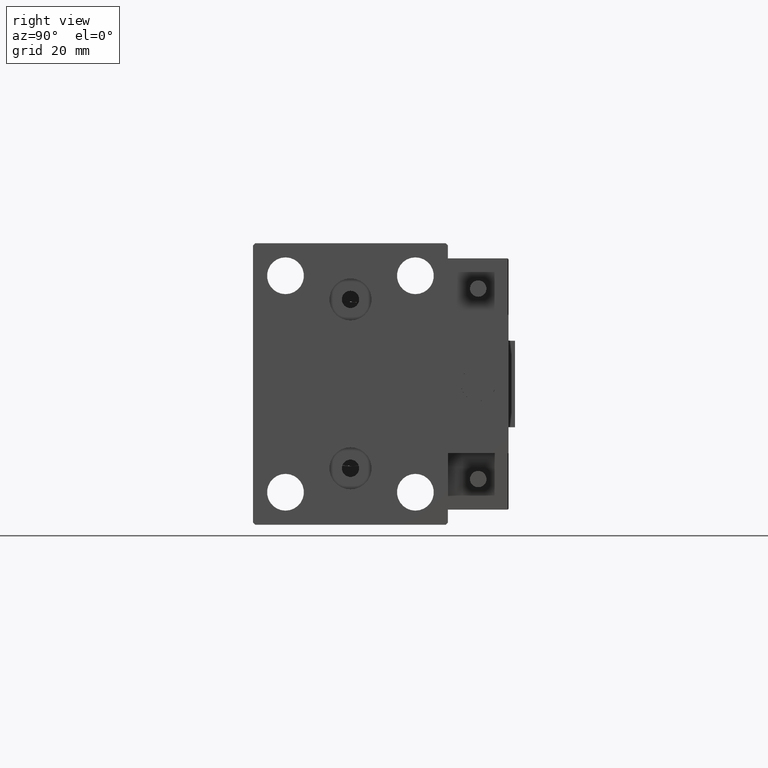
[diagram: clean part render]
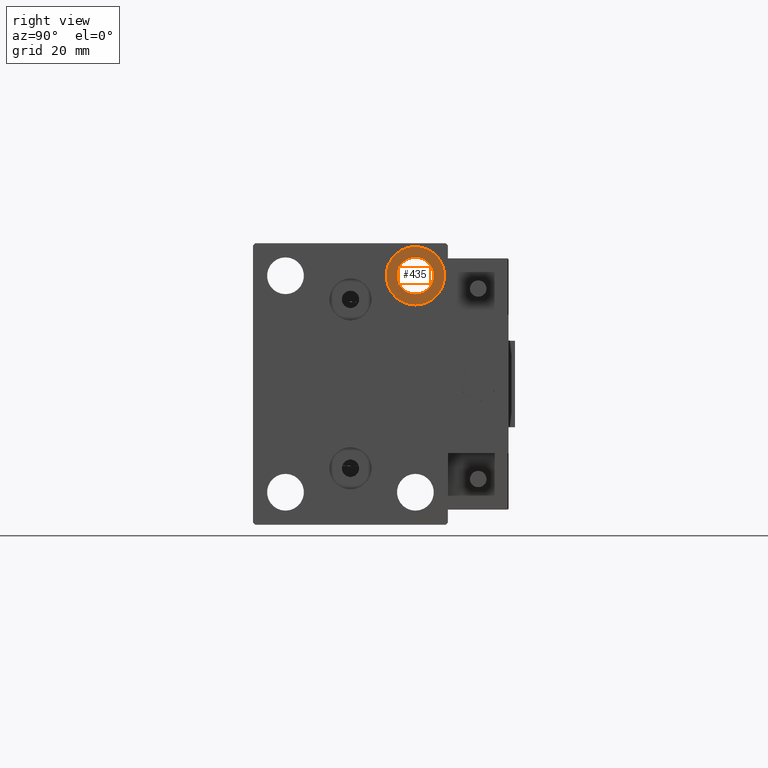
[diagram: same view with one face highlighted and labeled with its STEP entity id]
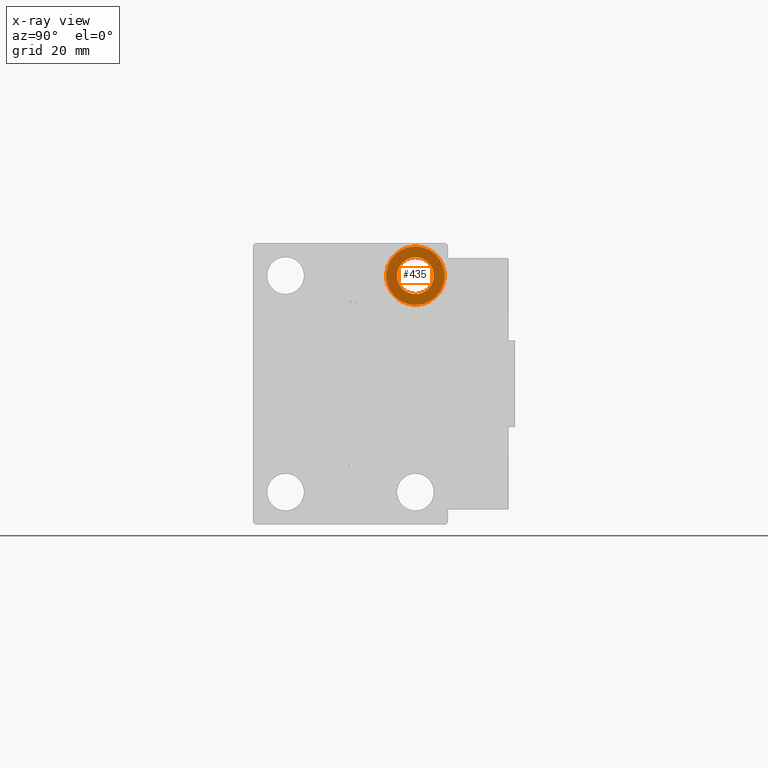
[diagram: x-ray of the same camera — body ghosted, the highlighted face saturated]
A machine part, right view. The second image highlights one B-rep face of the part: STEP entity #435.
The next image is the same camera in x-ray: the body ghosted, the highlighted face saturated — about 0% of this face is hidden behind the body in this view.
In plain terms, the highlighted planar face has unit normal (1, 0, 0).
Its self-contained STEP definition (entity closure, byte-faithful):
#328 = AXIS2_PLACEMENT_3D ( 'NONE', #40379, #33016, #14024 ) ;
#381 = DIRECTION ( 'NONE',  ( -1.000000000000000000, -0.000000000000000000, -0.000000000000000000 ) ) ;
#404 = AXIS2_PLACEMENT_3D ( 'NONE', #48763, #33769, #10721 ) ;
#435 = ADVANCED_FACE ( 'NONE', ( #22611, #14268 ), #45205, .T. ) ;
#714 = ORIENTED_EDGE ( 'NONE', *, *, #20349, .T. ) ;
#1921 = AXIS2_PLACEMENT_3D ( 'NONE', #24987, #48564, #25478 ) ;
#8231 = CARTESIAN_POINT ( 'NONE',  ( 61.00000000000000711, 15.00000000000000355, 20.75000000000000355 ) ) ;
#8266 = VERTEX_POINT ( 'NONE', #24168 ) ;
#9231 = DIRECTION ( 'NONE',  ( -1.000000000000000000, -0.000000000000000000, -0.000000000000000000 ) ) ;
#10054 = CIRCLE ( 'NONE', #328, 4.249999999999996447 ) ;
#10721 = DIRECTION ( 'NONE',  ( 0.000000000000000000, 0.000000000000000000, 1.000000000000000000 ) ) ;
#10949 = ORIENTED_EDGE ( 'NONE', *, *, #42204, .T. ) ;
#14024 = DIRECTION ( 'NONE',  ( 0.000000000000000000, 0.000000000000000000, -1.000000000000000000 ) ) ;
#14268 = FACE_BOUND ( 'NONE', #36955, .T. ) ;
#19148 = CARTESIAN_POINT ( 'NONE',  ( 61.00000000000000711, 15.00000000000000355, 25.00000000000000000 ) ) ;
#20119 = EDGE_CURVE ( 'NONE', #43383, #30263, #24628, .T. ) ;
#20349 = EDGE_CURVE ( 'NONE', #26672, #8266, #10054, .T. ) ;
#20889 = CIRCLE ( 'NONE', #46798, 6.749999999999999112 ) ;
#21656 = CARTESIAN_POINT ( 'NONE',  ( 61.00000000000000711, 15.00000000000000355, 18.25000000000000355 ) ) ;
#22611 = FACE_OUTER_BOUND ( 'NONE', #36376, .T. ) ;
#24168 = CARTESIAN_POINT ( 'NONE',  ( 61.00000000000000711, 15.00000000000000355, 29.25000000000000000 ) ) ;
#24628 = CIRCLE ( 'NONE', #1921, 6.749999999999999112 ) ;
#24678 = DIRECTION ( 'NONE',  ( 0.000000000000000000, 0.000000000000000000, 1.000000000000000000 ) ) ;
#24987 = CARTESIAN_POINT ( 'NONE',  ( 61.00000000000000711, 15.00000000000000355, 25.00000000000000000 ) ) ;
#25478 = DIRECTION ( 'NONE',  ( 0.000000000000000000, 0.000000000000000000, 1.000000000000000000 ) ) ;
#26672 = VERTEX_POINT ( 'NONE', #8231 ) ;
#28240 = CARTESIAN_POINT ( 'NONE',  ( 61.00000000000000711, 15.00000000000000355, 25.00000000000000000 ) ) ;
#28351 = AXIS2_PLACEMENT_3D ( 'NONE', #19148, #381, #31057 ) ;
#30263 = VERTEX_POINT ( 'NONE', #43613 ) ;
#31057 = DIRECTION ( 'NONE',  ( 0.000000000000000000, 0.000000000000000000, -1.000000000000000000 ) ) ;
#33016 = DIRECTION ( 'NONE',  ( -1.000000000000000000, -0.000000000000000000, -0.000000000000000000 ) ) ;
#33463 = EDGE_CURVE ( 'NONE', #30263, #43383, #20889, .T. ) ;
#33769 = DIRECTION ( 'NONE',  ( 1.000000000000000000, 0.000000000000000000, -0.000000000000000000 ) ) ;
#36376 = EDGE_LOOP ( 'NONE', ( #41265, #45070 ) ) ;
#36955 = EDGE_LOOP ( 'NONE', ( #10949, #714 ) ) ;
#40379 = CARTESIAN_POINT ( 'NONE',  ( 61.00000000000000711, 15.00000000000000355, 25.00000000000000000 ) ) ;
#41265 = ORIENTED_EDGE ( 'NONE', *, *, #20119, .F. ) ;
#42204 = EDGE_CURVE ( 'NONE', #8266, #26672, #44529, .T. ) ;
#43383 = VERTEX_POINT ( 'NONE', #21656 ) ;
#43613 = CARTESIAN_POINT ( 'NONE',  ( 61.00000000000000711, 15.00000000000000355, 31.75000000000000000 ) ) ;
#44529 = CIRCLE ( 'NONE', #28351, 4.249999999999996447 ) ;
#45070 = ORIENTED_EDGE ( 'NONE', *, *, #33463, .F. ) ;
#45205 = PLANE ( 'NONE',  #404 ) ;
#46798 = AXIS2_PLACEMENT_3D ( 'NONE', #28240, #9231, #24678 ) ;
#48564 = DIRECTION ( 'NONE',  ( -1.000000000000000000, -0.000000000000000000, -0.000000000000000000 ) ) ;
#48763 = CARTESIAN_POINT ( 'NONE',  ( 61.00000000000000711, 0.000000000000000000, 0.000000000000000000 ) ) ;